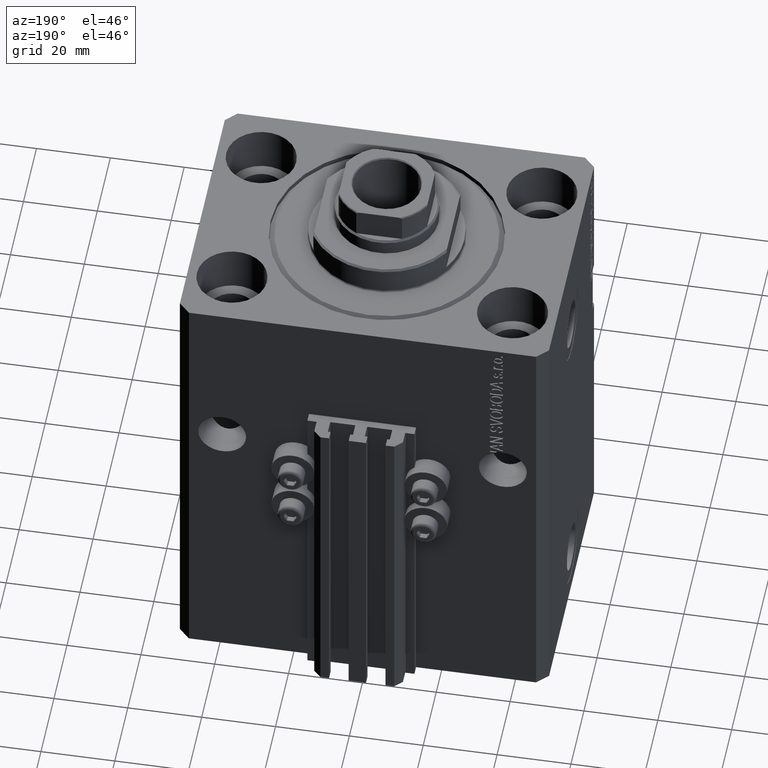
[diagram: clean part render]
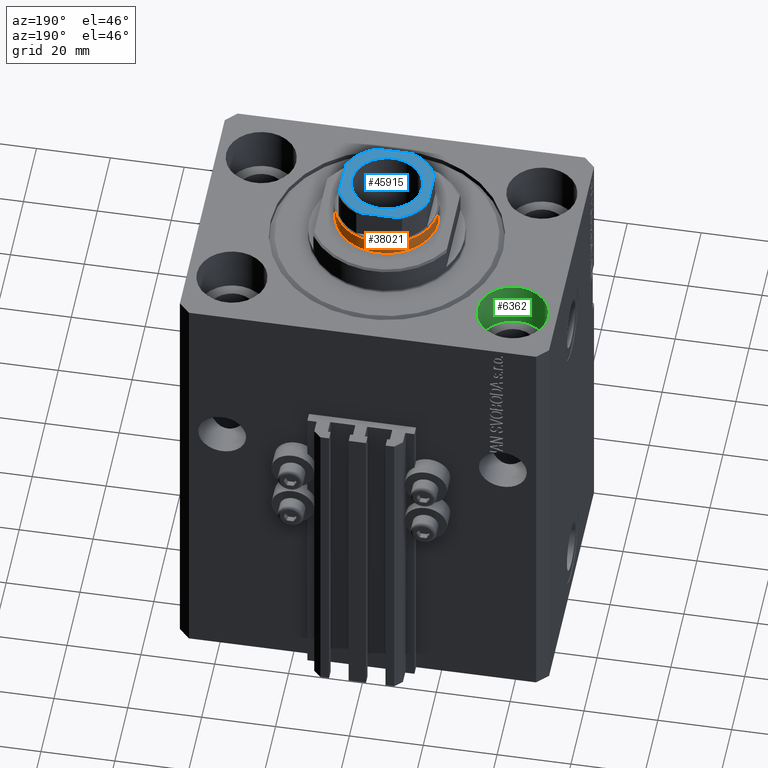
[diagram: same view with three faces highlighted in distinct colors, each labeled with its STEP entity id]
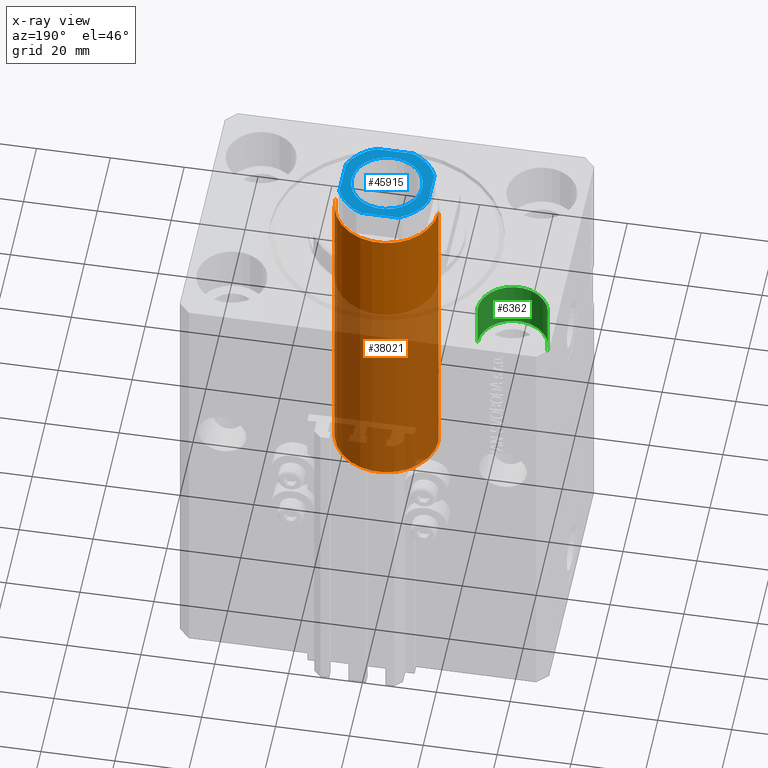
[diagram: x-ray of the same camera — body ghosted, the three highlighted faces saturated]
A machine part, auxiliary view with three faces highlighted in distinct colors.
The next image is the same camera in x-ray (body ghosted, the three faces saturated) — at least one of them is partly hidden behind the body in this view.
Their STEP definitions:

[orange] entity #38021 — the highlighted cylindrical surface (partial cylindrical patch) has radius 14 mm, axis along (-0, -0, -1).
#2081 = VECTOR ( 'NONE', #44322, 1000.000000000000000 ) ;
#2726 = CARTESIAN_POINT ( 'NONE',  ( 14.00000000000000000, 1.714505518806294638E-15, 36.50000000000000000 ) ) ;
#5232 = CYLINDRICAL_SURFACE ( 'NONE', #33291, 14.00000000000000000 ) ;
#5785 = AXIS2_PLACEMENT_3D ( 'NONE', #32466, #18504, #33196 ) ;
#6117 = EDGE_CURVE ( 'NONE', #43735, #34142, #26949, .T. ) ;
#8068 = ORIENTED_EDGE ( 'NONE', *, *, #6117, .F. ) ;
#8623 = DIRECTION ( 'NONE',  ( -1.000000000000000000, 0.000000000000000000, 0.000000000000000000 ) ) ;
#13842 = VERTEX_POINT ( 'NONE', #31775 ) ;
#14940 = LINE ( 'NONE', #29387, #2081 ) ;
#18504 = DIRECTION ( 'NONE',  ( 0.000000000000000000, 0.000000000000000000, 1.000000000000000000 ) ) ;
#19246 = DIRECTION ( 'NONE',  ( 0.000000000000000000, 0.000000000000000000, -1.000000000000000000 ) ) ;
#23003 = EDGE_CURVE ( 'NONE', #13842, #45670, #14940, .T. ) ;
#23767 = CARTESIAN_POINT ( 'NONE',  ( 0.000000000000000000, 0.000000000000000000, 125.0000000000000000 ) ) ;
#25221 = VECTOR ( 'NONE', #34193, 1000.000000000000000 ) ;
#26586 = ORIENTED_EDGE ( 'NONE', *, *, #23003, .T. ) ;
#26949 = LINE ( 'NONE', #33731, #25221 ) ;
#29258 = EDGE_LOOP ( 'NONE', ( #38279, #26586, #41664, #8068 ) ) ;
#29387 = CARTESIAN_POINT ( 'NONE',  ( 14.00000000000000000, 1.714505518806294638E-15, 125.0000000000000000 ) ) ;
#30991 = FACE_OUTER_BOUND ( 'NONE', #29258, .T. ) ;
#31412 = CARTESIAN_POINT ( 'NONE',  ( -14.00000000000000000, 0.000000000000000000, 124.5000000000000142 ) ) ;
#31775 = CARTESIAN_POINT ( 'NONE',  ( 14.00000000000000000, 1.714505518806294638E-15, 124.5000000000000142 ) ) ;
#32466 = CARTESIAN_POINT ( 'NONE',  ( 0.000000000000000000, 0.000000000000000000, 36.50000000000000000 ) ) ;
#33196 = DIRECTION ( 'NONE',  ( 1.000000000000000000, 0.000000000000000000, 0.000000000000000000 ) ) ;
#33291 = AXIS2_PLACEMENT_3D ( 'NONE', #23767, #38232, #8623 ) ;
#33731 = CARTESIAN_POINT ( 'NONE',  ( -14.00000000000000000, 0.000000000000000000, 125.0000000000000000 ) ) ;
#34142 = VERTEX_POINT ( 'NONE', #35376 ) ;
#34193 = DIRECTION ( 'NONE',  ( -0.000000000000000000, -0.000000000000000000, -1.000000000000000000 ) ) ;
#35376 = CARTESIAN_POINT ( 'NONE',  ( -14.00000000000000000, 0.000000000000000000, 36.50000000000000000 ) ) ;
#35642 = AXIS2_PLACEMENT_3D ( 'NONE', #37317, #19246, #37086 ) ;
#37086 = DIRECTION ( 'NONE',  ( 1.000000000000000000, 0.000000000000000000, 0.000000000000000000 ) ) ;
#37317 = CARTESIAN_POINT ( 'NONE',  ( 0.000000000000000000, 0.000000000000000000, 124.5000000000000142 ) ) ;
#38021 = ADVANCED_FACE ( 'NONE', ( #30991 ), #5232, .T. ) ;
#38232 = DIRECTION ( 'NONE',  ( -0.000000000000000000, -0.000000000000000000, -1.000000000000000000 ) ) ;
#38279 = ORIENTED_EDGE ( 'NONE', *, *, #40104, .T. ) ;
#40104 = EDGE_CURVE ( 'NONE', #43735, #13842, #44978, .T. ) ;
#41664 = ORIENTED_EDGE ( 'NONE', *, *, #46299, .T. ) ;
#43735 = VERTEX_POINT ( 'NONE', #31412 ) ;
#44322 = DIRECTION ( 'NONE',  ( -0.000000000000000000, -0.000000000000000000, -1.000000000000000000 ) ) ;
#44978 = CIRCLE ( 'NONE', #35642, 14.00000000000000000 ) ;
#45041 = CIRCLE ( 'NONE', #5785, 14.00000000000000000 ) ;
#45670 = VERTEX_POINT ( 'NONE', #2726 ) ;
#46299 = EDGE_CURVE ( 'NONE', #45670, #34142, #45041, .T. ) ;

[blue] entity #45915 — the highlighted planar face has unit normal (0, 0, 1).
#74 = EDGE_CURVE ( 'NONE', #2467, #11342, #37230, .T. ) ;
#472 = FACE_BOUND ( 'NONE', #11150, .T. ) ;
#859 = LINE ( 'NONE', #33390, #8042 ) ;
#1002 = ORIENTED_EDGE ( 'NONE', *, *, #42758, .T. ) ;
#1663 = EDGE_CURVE ( 'NONE', #22574, #21192, #24341, .T. ) ;
#2024 = LINE ( 'NONE', #41573, #39115 ) ;
#2467 = VERTEX_POINT ( 'NONE', #18934 ) ;
#5876 = VERTEX_POINT ( 'NONE', #39274 ) ;
#6147 = VERTEX_POINT ( 'NONE', #15885 ) ;
#6848 = DIRECTION ( 'NONE',  ( 1.000000000000000000, 0.000000000000000000, 0.000000000000000000 ) ) ;
#6886 = CIRCLE ( 'NONE', #29198, 13.00000000000000000 ) ;
#6957 = DIRECTION ( 'NONE',  ( 1.000000000000000000, 0.000000000000000000, 0.000000000000000000 ) ) ;
#7567 = EDGE_CURVE ( 'NONE', #6147, #39166, #2024, .T. ) ;
#8042 = VECTOR ( 'NONE', #40852, 1000.000000000000000 ) ;
#8358 = EDGE_CURVE ( 'NONE', #21192, #9387, #38367, .T. ) ;
#8804 = DIRECTION ( 'NONE',  ( -1.445602896647339163E-16, 1.000000000000000000, -0.000000000000000000 ) ) ;
#9371 = AXIS2_PLACEMENT_3D ( 'NONE', #28744, #46336, #6848 ) ;
#9387 = VERTEX_POINT ( 'NONE', #36980 ) ;
#10313 = AXIS2_PLACEMENT_3D ( 'NONE', #20566, #21286, #47312 ) ;
#10729 = DIRECTION ( 'NONE',  ( -0.000000000000000000, 0.000000000000000000, 1.000000000000000000 ) ) ;
#11150 = EDGE_LOOP ( 'NONE', ( #1002, #47409 ) ) ;
#11342 = VERTEX_POINT ( 'NONE', #26029 ) ;
#11573 = PLANE ( 'NONE',  #17352 ) ;
#11935 = EDGE_CURVE ( 'NONE', #9387, #44452, #859, .T. ) ;
#14042 = CARTESIAN_POINT ( 'NONE',  ( -11.99999999999999822, 5.000000000000000888, 133.0000000000000000 ) ) ;
#14220 = DIRECTION ( 'NONE',  ( -0.000000000000000000, 0.000000000000000000, 1.000000000000000000 ) ) ;
#14417 = VECTOR ( 'NONE', #28194, 1000.000000000000000 ) ;
#15885 = CARTESIAN_POINT ( 'NONE',  ( 12.00000000000000178, -4.999999999999990230, 133.0000000000000000 ) ) ;
#16663 = DIRECTION ( 'NONE',  ( 1.000000000000000000, 0.000000000000000000, 0.000000000000000000 ) ) ;
#17135 = CARTESIAN_POINT ( 'NONE',  ( -11.99999999999999822, 11.99999999999999822, 133.0000000000000000 ) ) ;
#17352 = AXIS2_PLACEMENT_3D ( 'NONE', #32516, #14220, #25763 ) ;
#17516 = ORIENTED_EDGE ( 'NONE', *, *, #11935, .T. ) ;
#17961 = CARTESIAN_POINT ( 'NONE',  ( -11.99999999999999822, 11.99999999999999822, 133.0000000000000000 ) ) ;
#18843 = EDGE_LOOP ( 'NONE', ( #39254, #26449, #17516, #24318, #38335, #38088, #30646, #40854 ) ) ;
#18934 = CARTESIAN_POINT ( 'NONE',  ( 5.000000000000002665, 12.00000000000000000, 133.0000000000000000 ) ) ;
#19416 = CARTESIAN_POINT ( 'NONE',  ( -11.99999999999999822, -5.000000000000001776, 133.0000000000000000 ) ) ;
#20446 = CARTESIAN_POINT ( 'NONE',  ( 4.999999999999993783, -12.00000000000000178, 133.0000000000000000 ) ) ;
#20566 = CARTESIAN_POINT ( 'NONE',  ( 0.000000000000000000, 0.000000000000000000, 133.0000000000000000 ) ) ;
#20974 = CARTESIAN_POINT ( 'NONE',  ( 0.000000000000000000, 0.000000000000000000, 133.0000000000000000 ) ) ;
#21192 = VERTEX_POINT ( 'NONE', #19416 ) ;
#21286 = DIRECTION ( 'NONE',  ( 0.000000000000000000, -0.000000000000000000, -1.000000000000000000 ) ) ;
#22574 = VERTEX_POINT ( 'NONE', #14042 ) ;
#23572 = VECTOR ( 'NONE', #33382, 1000.000000000000000 ) ;
#23740 = VERTEX_POINT ( 'NONE', #31762 ) ;
#24318 = ORIENTED_EDGE ( 'NONE', *, *, #30761, .T. ) ;
#24341 = LINE ( 'NONE', #17135, #14417 ) ;
#24497 = AXIS2_PLACEMENT_3D ( 'NONE', #46444, #32481, #6957 ) ;
#24516 = AXIS2_PLACEMENT_3D ( 'NONE', #28031, #10729, #28520 ) ;
#25763 = DIRECTION ( 'NONE',  ( 1.000000000000000000, 0.000000000000000000, 0.000000000000000000 ) ) ;
#26029 = CARTESIAN_POINT ( 'NONE',  ( -5.000000000000001776, 11.99999999999999822, 133.0000000000000000 ) ) ;
#26449 = ORIENTED_EDGE ( 'NONE', *, *, #8358, .T. ) ;
#28031 = CARTESIAN_POINT ( 'NONE',  ( 0.000000000000000000, 0.000000000000000000, 133.0000000000000000 ) ) ;
#28194 = DIRECTION ( 'NONE',  ( 7.228014483236695816E-17, -1.000000000000000000, 0.000000000000000000 ) ) ;
#28520 = DIRECTION ( 'NONE',  ( 1.000000000000000000, 0.000000000000000000, 0.000000000000000000 ) ) ;
#28744 = CARTESIAN_POINT ( 'NONE',  ( 0.000000000000000000, 0.000000000000000000, 133.0000000000000000 ) ) ;
#29198 = AXIS2_PLACEMENT_3D ( 'NONE', #36777, #44474, #37242 ) ;
#29627 = EDGE_CURVE ( 'NONE', #39166, #2467, #45290, .T. ) ;
#30159 = CIRCLE ( 'NONE', #9371, 9.550000000000002487 ) ;
#30646 = ORIENTED_EDGE ( 'NONE', *, *, #74, .T. ) ;
#30761 = EDGE_CURVE ( 'NONE', #44452, #6147, #6886, .T. ) ;
#31061 = CIRCLE ( 'NONE', #10313, 9.550000000000002487 ) ;
#31762 = CARTESIAN_POINT ( 'NONE',  ( -9.550000000000002487, 1.169537693185722755E-15, 133.0000000000000000 ) ) ;
#32481 = DIRECTION ( 'NONE',  ( -0.000000000000000000, 0.000000000000000000, 1.000000000000000000 ) ) ;
#32516 = CARTESIAN_POINT ( 'NONE',  ( 0.000000000000000000, 0.000000000000000000, 133.0000000000000000 ) ) ;
#33382 = DIRECTION ( 'NONE',  ( -1.000000000000000000, -7.228014483236695816E-17, -0.000000000000000000 ) ) ;
#33390 = CARTESIAN_POINT ( 'NONE',  ( -11.99999999999999645, -12.00000000000000178, 133.0000000000000000 ) ) ;
#36777 = CARTESIAN_POINT ( 'NONE',  ( 0.000000000000000000, 0.000000000000000000, 133.0000000000000000 ) ) ;
#36980 = CARTESIAN_POINT ( 'NONE',  ( -4.999999999999992895, -12.00000000000000178, 133.0000000000000000 ) ) ;
#37230 = LINE ( 'NONE', #17961, #23572 ) ;
#37242 = DIRECTION ( 'NONE',  ( 1.000000000000000000, 0.000000000000000000, 0.000000000000000000 ) ) ;
#37284 = AXIS2_PLACEMENT_3D ( 'NONE', #20974, #46523, #16663 ) ;
#37336 = EDGE_CURVE ( 'NONE', #23740, #5876, #30159, .T. ) ;
#37609 = CARTESIAN_POINT ( 'NONE',  ( 12.00000000000000178, 4.999999999999994671, 133.0000000000000000 ) ) ;
#38031 = CIRCLE ( 'NONE', #37284, 13.00000000000000000 ) ;
#38088 = ORIENTED_EDGE ( 'NONE', *, *, #29627, .T. ) ;
#38335 = ORIENTED_EDGE ( 'NONE', *, *, #7567, .T. ) ;
#38367 = CIRCLE ( 'NONE', #24516, 13.00000000000000000 ) ;
#38898 = EDGE_CURVE ( 'NONE', #11342, #22574, #38031, .T. ) ;
#39115 = VECTOR ( 'NONE', #8804, 1000.000000000000000 ) ;
#39166 = VERTEX_POINT ( 'NONE', #37609 ) ;
#39254 = ORIENTED_EDGE ( 'NONE', *, *, #1663, .T. ) ;
#39274 = CARTESIAN_POINT ( 'NONE',  ( 9.550000000000002487, 0.000000000000000000, 133.0000000000000000 ) ) ;
#40852 = DIRECTION ( 'NONE',  ( 1.000000000000000000, 7.228014483236695816E-17, 0.000000000000000000 ) ) ;
#40854 = ORIENTED_EDGE ( 'NONE', *, *, #38898, .T. ) ;
#41573 = CARTESIAN_POINT ( 'NONE',  ( 12.00000000000000000, 12.00000000000000000, 133.0000000000000000 ) ) ;
#42758 = EDGE_CURVE ( 'NONE', #5876, #23740, #31061, .T. ) ;
#44452 = VERTEX_POINT ( 'NONE', #20446 ) ;
#44474 = DIRECTION ( 'NONE',  ( -0.000000000000000000, 0.000000000000000000, 1.000000000000000000 ) ) ;
#44565 = FACE_OUTER_BOUND ( 'NONE', #18843, .T. ) ;
#45290 = CIRCLE ( 'NONE', #24497, 13.00000000000000000 ) ;
#45915 = ADVANCED_FACE ( 'NONE', ( #472, #44565 ), #11573, .T. ) ;
#46336 = DIRECTION ( 'NONE',  ( 0.000000000000000000, -0.000000000000000000, -1.000000000000000000 ) ) ;
#46444 = CARTESIAN_POINT ( 'NONE',  ( 0.000000000000000000, 0.000000000000000000, 133.0000000000000000 ) ) ;
#46523 = DIRECTION ( 'NONE',  ( -0.000000000000000000, 0.000000000000000000, 1.000000000000000000 ) ) ;
#47312 = DIRECTION ( 'NONE',  ( 1.000000000000000000, 0.000000000000000000, 0.000000000000000000 ) ) ;
#47409 = ORIENTED_EDGE ( 'NONE', *, *, #37336, .T. ) ;

[green] entity #6362 — the highlighted cylindrical surface (edge-blend (fillet) strip) has radius 9.5 mm, axis along (0, 0, 1).
#2779 = CARTESIAN_POINT ( 'NONE',  ( -28.50000000000000355, 22.50000000000000000, -13.00000000000000000 ) ) ;
#3418 = CARTESIAN_POINT ( 'NONE',  ( -47.50000000000000711, 22.50000000000000000, -13.00000000000000000 ) ) ;
#3999 = EDGE_LOOP ( 'NONE', ( #38445, #11966, #40115, #27794 ) ) ;
#4654 = EDGE_CURVE ( 'NONE', #8137, #27982, #33298, .T. ) ;
#6362 = ADVANCED_FACE ( 'NONE', ( #37221 ), #44685, .F. ) ;
#7619 = CARTESIAN_POINT ( 'NONE',  ( -47.50000000000000711, 22.50000000000000000, 0.000000000000000000 ) ) ;
#8137 = VERTEX_POINT ( 'NONE', #29313 ) ;
#8550 = DIRECTION ( 'NONE',  ( 1.000000000000000000, 0.000000000000000000, 0.000000000000000000 ) ) ;
#9760 = EDGE_CURVE ( 'NONE', #27920, #43795, #29152, .T. ) ;
#11670 = AXIS2_PLACEMENT_3D ( 'NONE', #19439, #45913, #42306 ) ;
#11690 = CARTESIAN_POINT ( 'NONE',  ( -38.00000000000000711, 22.50000000000000000, -13.00000000000000000 ) ) ;
#11966 = ORIENTED_EDGE ( 'NONE', *, *, #4654, .T. ) ;
#12924 = AXIS2_PLACEMENT_3D ( 'NONE', #11690, #22743, #8550 ) ;
#14165 = CARTESIAN_POINT ( 'NONE',  ( -38.00000000000000711, 22.50000000000000000, 0.000000000000000000 ) ) ;
#14271 = CIRCLE ( 'NONE', #35813, 9.500000000000001776 ) ;
#14276 = DIRECTION ( 'NONE',  ( -0.000000000000000000, -0.000000000000000000, 1.000000000000000000 ) ) ;
#15856 = CARTESIAN_POINT ( 'NONE',  ( -28.50000000000000355, 22.50000000000000000, 0.000000000000000000 ) ) ;
#18258 = DIRECTION ( 'NONE',  ( 1.000000000000000000, 0.000000000000000000, 0.000000000000000000 ) ) ;
#18263 = VECTOR ( 'NONE', #14276, 1000.000000000000000 ) ;
#19439 = CARTESIAN_POINT ( 'NONE',  ( -38.00000000000000711, 22.50000000000000000, -13.00000000000000000 ) ) ;
#22743 = DIRECTION ( 'NONE',  ( -0.000000000000000000, -0.000000000000000000, 1.000000000000000000 ) ) ;
#25531 = CARTESIAN_POINT ( 'NONE',  ( -28.50000000000000355, 22.50000000000000000, -13.00000000000000000 ) ) ;
#27794 = ORIENTED_EDGE ( 'NONE', *, *, #9760, .F. ) ;
#27920 = VERTEX_POINT ( 'NONE', #2779 ) ;
#27982 = VERTEX_POINT ( 'NONE', #7619 ) ;
#29091 = DIRECTION ( 'NONE',  ( 0.000000000000000000, 0.000000000000000000, 1.000000000000000000 ) ) ;
#29152 = LINE ( 'NONE', #25531, #44571 ) ;
#29313 = CARTESIAN_POINT ( 'NONE',  ( -47.50000000000000711, 22.50000000000000000, -13.00000000000000000 ) ) ;
#29629 = DIRECTION ( 'NONE',  ( -0.000000000000000000, -0.000000000000000000, 1.000000000000000000 ) ) ;
#33298 = LINE ( 'NONE', #3418, #18263 ) ;
#35149 = EDGE_CURVE ( 'NONE', #8137, #27920, #35473, .T. ) ;
#35473 = CIRCLE ( 'NONE', #11670, 9.500000000000001776 ) ;
#35813 = AXIS2_PLACEMENT_3D ( 'NONE', #14165, #29091, #18258 ) ;
#37221 = FACE_OUTER_BOUND ( 'NONE', #3999, .T. ) ;
#38445 = ORIENTED_EDGE ( 'NONE', *, *, #35149, .F. ) ;
#40115 = ORIENTED_EDGE ( 'NONE', *, *, #46245, .T. ) ;
#42306 = DIRECTION ( 'NONE',  ( 1.000000000000000000, 0.000000000000000000, 0.000000000000000000 ) ) ;
#43795 = VERTEX_POINT ( 'NONE', #15856 ) ;
#44571 = VECTOR ( 'NONE', #29629, 1000.000000000000000 ) ;
#44685 = CYLINDRICAL_SURFACE ( 'NONE', #12924, 9.500000000000001776 ) ;
#45913 = DIRECTION ( 'NONE',  ( 0.000000000000000000, 0.000000000000000000, 1.000000000000000000 ) ) ;
#46245 = EDGE_CURVE ( 'NONE', #27982, #43795, #14271, .T. ) ;